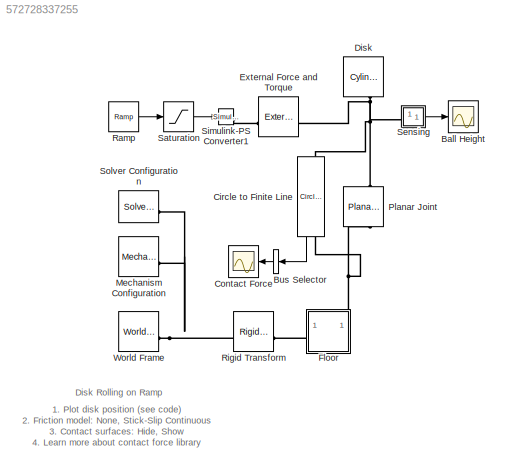
MODEL slx_572728337255
KIND model
CONFIG AbsTol = 1e-5
CONFIG EnableMultiTasking = on
CONFIG FixedStep = auto
CONFIG MaxStep = 1e-2
CONFIG MinStep = auto
CONFIG PostLoadFcn = warning off Simulink:Engine:UsingDefaultMaxStepSize\n
CONFIG RelTol = 1e-4
CONFIG SampleTimeConstraint = Unconstrained
CONFIG SolverName = ode15s
CONFIG StartFcn = tic;
CONFIG StartTime = 0.0
CONFIG StopFcn = Elapsed_Sim_Time = toc;\ndisp(['Elapsed Sim Time = ' num2str(Elapsed_Sim_Time)]);\n
CONFIG StopTime = 4
WORKSPACE source: MATLAB code (in-file)
WORKSPACE code: Disk.radius = 0.2;
WORKSPACE code: Disk.length = 0.2;
WORKSPACE code: Disk.density = 1000;
WORKSPACE code: Floor.length = 2.5;
WORKSPACE code: Floor.width = 0.2;
WORKSPACE code: Floor.depth = 0.05;
WORKSPACE code: Floor.angle = -10;
BLOCK [Scope] Ball Height
  Floating = off
  NumInputPorts = 1
  ScopeSpecificationString = Simulink.scopes.TimeScopeBlockCfg('CurrentConfiguration', extmgr.ConfigurationSet(extmgr.Configuration('Core','General UI',true,'FigureColor',[0.501960784313725 0.501960784313725 0.501960784313725]),extmgr.Configuration('Core','Source UI',true),extmgr.Configuration('Sources','WiredSimulink',true,'DataLoggingSaveFormat','StructureWithTime','DataLoggingDecimation','1'),extmgr.Configuration('Visuals'...<+2669ch>
BLOCK [BusSelector] Bus Selector
  NameLocation = top
  OutputAsBus = on
  OutputSignals = Normal Force
BLOCK [Reference] Circle to Finite Line  REF=Contact_Forces_Lib/2D/Circle to Finite Line Force
  NameLocation = left
  SourceBlock = Contact_Forces_Lib/2D/Circle to Finite Line Force
  SourceProductName = Simscape Multibody Contact Forces Library
  SourceType = Circle on Finite Line Force
BLOCK [Scope] Contact Force
  Floating = off
  NumInputPorts = 1
  ScopeSpecificationString = Simulink.scopes.TimeScopeBlockCfg('CurrentConfiguration', extmgr.ConfigurationSet(extmgr.Configuration('Core','General UI',true,'FigureColor',[0.501960784313725 0.501960784313725 0.501960784313725]),extmgr.Configuration('Core','Source UI',true),extmgr.Configuration('Sources','WiredSimulink',true,'DataLoggingVariableName','ScopeData1','DataLoggingSaveFormat','StructureWithTime','DataLoggingDecimati...<+2633ch>
BLOCK [Reference] Disk  REF=Parts_Lib/Cylinder
  NameLocation = right
  SourceBlock = Parts_Lib/Cylinder
  SourceType = Solid Cylinder with Markings
BLOCK [Reference] External Force and Torque  REF=sm_lib/Forces and
Torques/External Force
and Torque
  NameLocation = top
  SourceBlock = sm_lib/Forces and\nTorques/External Force\nand Torque
  SourceType = External Force\nand Torque
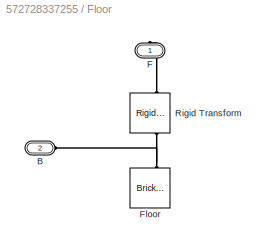
BLOCK [SubSystem] Floor
  Tag = CustomStyle
BLOCK [PMIOPort] Floor/B
  Port = 2
  Side = Left
BLOCK [PMIOPort] Floor/F
  NameLocation = right
  Side = Right
BLOCK [Reference] Floor/Floor  REF=sm_lib/Body Elements/Brick Solid
  NameLocation = right
  SourceBlock = sm_lib/Body Elements/Brick Solid
  SourceType = Brick Solid
BLOCK [Reference] Floor/Rigid Transform  REF=sm_lib/Frames and
Transforms/Rigid
Transform
  NameLocation = right
  SourceBlock = sm_lib/Frames and\nTransforms/Rigid\nTransform
  SourceType = Rigid\nTransform
BLOCK [Reference] Mechanism Configuration  REF=sm_lib/Utilities/Mechanism
Configuration
  SourceBlock = sm_lib/Utilities/Mechanism\nConfiguration
  SourceType = Mechanism\nConfiguration
BLOCK [Reference] Planar Joint  REF=sm_lib/Joints/Planar Joint
  NameLocation = right
  SourceBlock = sm_lib/Joints/Planar Joint
  SourceType = Planar Joint
BLOCK [Reference] Ramp  REF=simulink/Sources/Ramp
  SourceBlock = simulink/Sources/Ramp
  SourceType = Ramp
BLOCK [Reference] Rigid Transform  REF=sm_lib/Frames and
Transforms/Rigid
Transform
  SourceBlock = sm_lib/Frames and\nTransforms/Rigid\nTransform
  SourceType = Rigid\nTransform
BLOCK [Saturate] Saturation
  LowerLimit = -25
  UpperLimit = 25
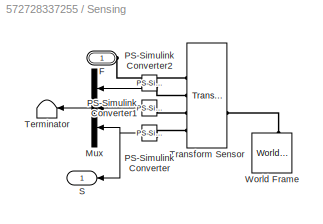
BLOCK [SubSystem] Sensing
BLOCK [PMIOPort] Sensing/F
  NameLocation = top
  Side = Left
BLOCK [Mux] Sensing/Mux
  DisplayOption = bar
  Inputs = 3
BLOCK [Reference] Sensing/PS-Simulink Converter  REF=nesl_utility/PS-Simulink
Converter
  NameLocation = top
  SourceBlock = nesl_utility/PS-Simulink\nConverter
  SourceType = PS-Simulink\nConverter
BLOCK [Reference] Sensing/PS-Simulink Converter1  REF=nesl_utility/PS-Simulink
Converter
  NameLocation = top
  SourceBlock = nesl_utility/PS-Simulink\nConverter
  SourceType = PS-Simulink\nConverter
BLOCK [Reference] Sensing/PS-Simulink Converter2  REF=nesl_utility/PS-Simulink
Converter
  NameLocation = top
  SourceBlock = nesl_utility/PS-Simulink\nConverter
  SourceType = PS-Simulink\nConverter
BLOCK [Outport] Sensing/S
  VectorParamsAs1DForOutWhenUnconnected = off
BLOCK [Terminator] Sensing/Terminator
BLOCK [Reference] Sensing/Transform Sensor  REF=sm_lib/Frames and
Transforms/Transform
Sensor
  SourceBlock = sm_lib/Frames and\nTransforms/Transform\nSensor
  SourceType = Transform\nSensor
BLOCK [Reference] Sensing/World Frame  REF=sm_lib/Frames and
Transforms/World Frame
  NameLocation = right
  SourceBlock = sm_lib/Frames and\nTransforms/World Frame
  SourceType = World Frame
BLOCK [Reference] Simulink-PS Converter1  REF=nesl_utility/Simulink-PS
Converter
  SourceBlock = nesl_utility/Simulink-PS\nConverter
  SourceType = Simulink-PS\nConverter
BLOCK [Reference] Solver Configuration  REF=nesl_utility/Solver
Configuration
  SourceBlock = nesl_utility/Solver\nConfiguration
  SourceType = Solver\nConfiguration
BLOCK [Reference] World Frame  REF=sm_lib/Frames and
Transforms/World Frame
  SourceBlock = sm_lib/Frames and\nTransforms/World Frame
  SourceType = World Frame
ANNOTATION (root): 1. Plot disk position ( see code ) 2. Friction model: None , Stick-Slip Continuous 3. Contact surfaces: Hide , Show 4. Learn more about contact force library
ANNOTATION (root): Disk Rolling on Ramp
LINE Bus Selector:1 -> Contact Force:1
LINE Circle to Finite Line:1 -> Bus Selector:1
LINE Ramp:1 -> Saturation:1
LINE Saturation:1 -> Simulink-PS Converter1:1
LINE Sensing/Mux:1 -> Sensing/Terminator:1
LINE Sensing/PS-Simulink Converter1:1 -> Sensing/Mux:2
LINE Sensing/PS-Simulink Converter2:1 -> Sensing/Mux:1
NET Sensing/PS-Simulink Converter:1 -> Sensing/Mux:3, Sensing/S:1
LINE Sensing:1 -> Ball Height:1
PNET net1: Circle to Finite Line:LConn1 -- Disk:LConn1 -- External Force and Torque:RConn1 -- Planar Joint:RConn1 -- Sensing:LConn1
PNET net2: Circle to Finite Line:RConn1 -- Floor:RConn1 -- Planar Joint:LConn1
PLINE External Force and Torque:LConn1 -- Simulink-PS Converter1:RConn1
PNET net3: Floor/B:RConn1 -- Floor/Floor:RConn1 -- Floor/Rigid Transform:LConn1
PLINE Floor/F:RConn1 -- Floor/Rigid Transform:RConn1
PLINE Floor:LConn1 -- Rigid Transform:RConn1
PNET net4: Mechanism Configuration:RConn1 -- Rigid Transform:LConn1 -- Solver Configuration:RConn1 -- World Frame:RConn1
PLINE Sensing/F:RConn1 -- Sensing/Transform Sensor:RConn1
PLINE Sensing/PS-Simulink Converter1:LConn1 -- Sensing/Transform Sensor:RConn3
PLINE Sensing/PS-Simulink Converter2:LConn1 -- Sensing/Transform Sensor:RConn2
PLINE Sensing/PS-Simulink Converter:LConn1 -- Sensing/Transform Sensor:RConn4
PLINE Sensing/Transform Sensor:LConn1 -- Sensing/World Frame:RConn1
note: NET lines group one-source signal fan-out (src -> all destinations, sorted); 1:1 wires keep LINE; PNET lines group multi-terminal physical nets as a canonical sorted terminal list (undirected conserving connections); 2-terminal nets keep the pairwise PLINE form
